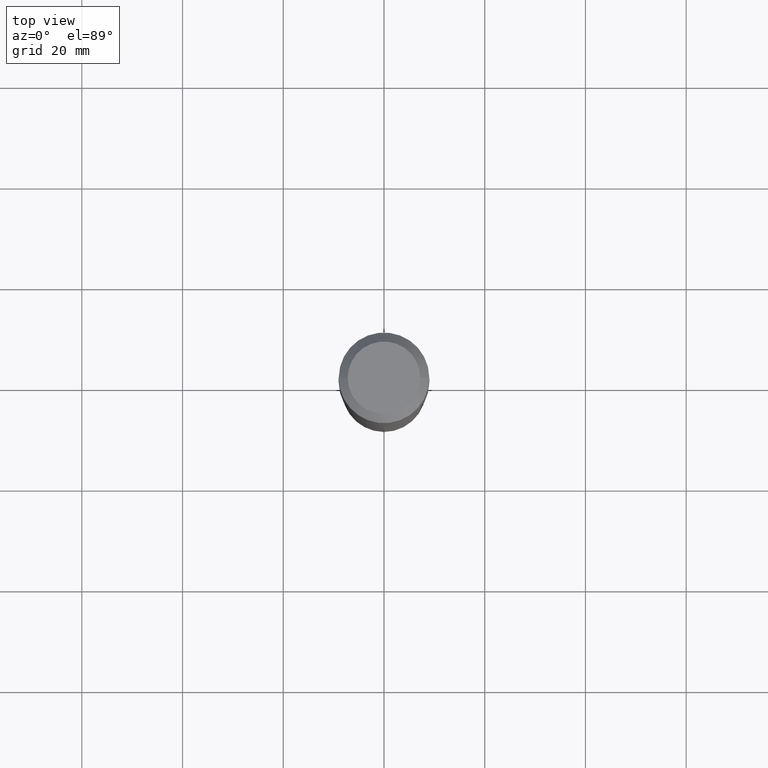
[diagram: clean part render]
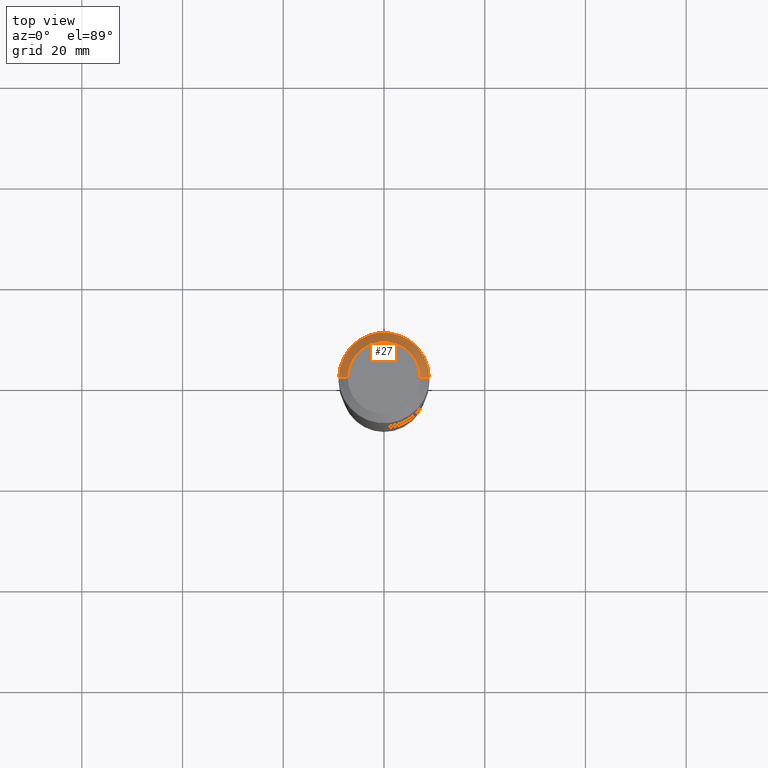
[diagram: same view with one face highlighted and labeled with its STEP entity id]
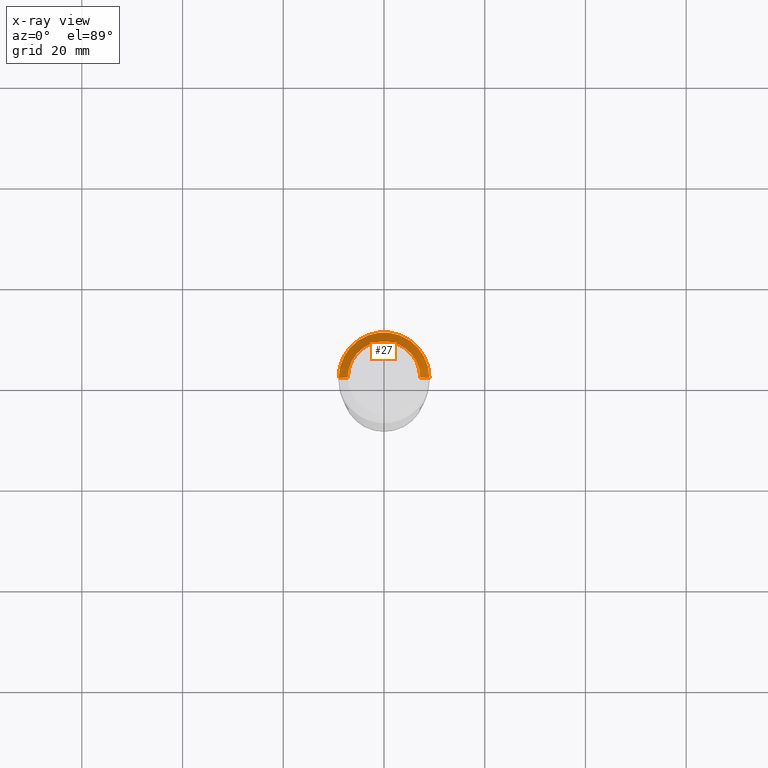
[diagram: x-ray of the same camera — body ghosted, the highlighted face saturated]
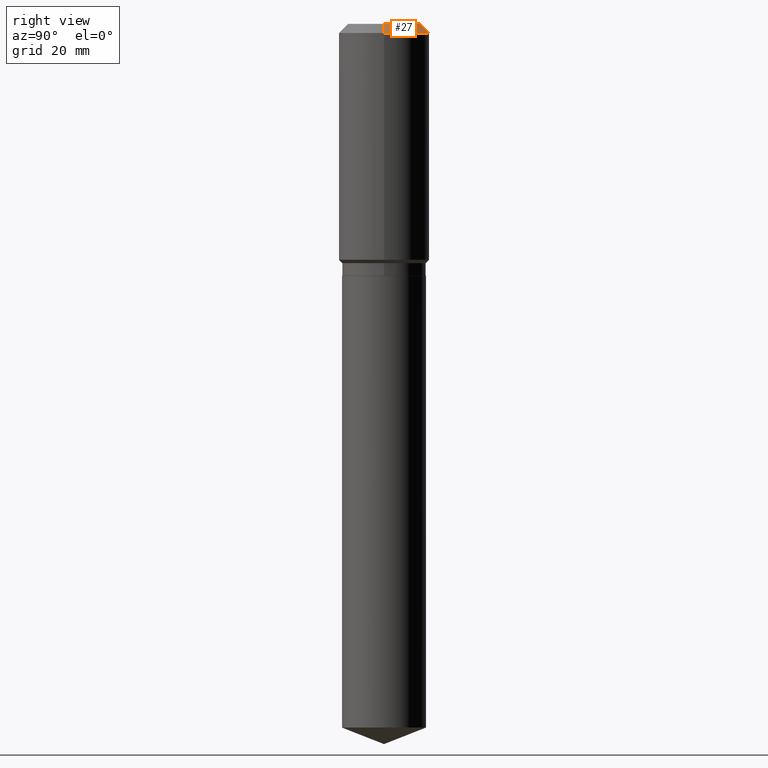
[diagram: same view with one face highlighted and labeled with its STEP entity id]
A machine part, top view. The second image highlights one B-rep face of the part: STEP entity #27.
The next image is the same camera in x-ray: the body ghosted, the highlighted face saturated — about 0% of this face is hidden behind the body in this view.
A second angle (right view) of the same face is appended — the face is thin or edge-on in the first view.
In plain terms, the highlighted conical surface has half-angle 45 deg.
Its self-contained STEP definition (entity closure, byte-faithful):
#6 = EDGE_CURVE ( 'NONE', #116, #199, #254, .T. ) ;
#13 = DIRECTION ( 'NONE',  ( -2.445468806185136597E-29, 3.491481338843145583E-15, 1.000000000000000000 ) ) ;
#14 = EDGE_CURVE ( 'NONE', #423, #419, #167, .T. ) ;
#27 = ADVANCED_FACE ( 'NONE', ( #275 ), #284, .T. ) ;
#29 = CARTESIAN_POINT ( 'NONE',  ( -0.3543499999999999983, 2.226971542354313655E-15, -0.07087000000000043265 ) ) ;
#34 = AXIS2_PLACEMENT_3D ( 'NONE', #400, #239, #395 ) ;
#36 = ORIENTED_EDGE ( 'NONE', *, *, #184, .F. ) ;
#57 = DIRECTION ( 'NONE',  ( -1.000000000000000000, 6.982962677686266711E-15, 0.000000000000000000 ) ) ;
#72 = CARTESIAN_POINT ( 'NONE',  ( -0.3543499999999999983, -8.249709644559009364E-16, -0.07087000000000043265 ) ) ;
#74 = CARTESIAN_POINT ( 'NONE',  ( 0.3543499999999999983, -2.721854107321943733E-15, -0.07087000000000043265 ) ) ;
#81 = VECTOR ( 'NONE', #412, 39.37007874015748143 ) ;
#116 = VERTEX_POINT ( 'NONE', #74 ) ;
#146 = AXIS2_PLACEMENT_3D ( 'NONE', #430, #269, #57 ) ;
#167 = CIRCLE ( 'NONE', #34, 0.2834800000000000098 ) ;
#184 = EDGE_CURVE ( 'NONE', #419, #199, #477, .T. ) ;
#199 = VERTEX_POINT ( 'NONE', #72 ) ;
#231 = LINE ( 'NONE', #315, #451 ) ;
#239 = DIRECTION ( 'NONE',  ( -2.445468806185136597E-29, 3.491481338843145583E-15, 1.000000000000000000 ) ) ;
#254 = CIRCLE ( 'NONE', #417, 0.3543499999999999983 ) ;
#269 = DIRECTION ( 'NONE',  ( 2.445468806185136597E-29, -3.491481338843145583E-15, -1.000000000000000000 ) ) ;
#275 = FACE_OUTER_BOUND ( 'NONE', #453, .T. ) ;
#284 = CONICAL_SURFACE ( 'NONE', #146, 0.3543499999999999983, 0.7853981633974452814 ) ;
#309 = ORIENTED_EDGE ( 'NONE', *, *, #6, .T. ) ;
#315 = CARTESIAN_POINT ( 'NONE',  ( 0.3543499999999999983, -2.678458747994157430E-15, -0.07087000000000043265 ) ) ;
#367 = EDGE_CURVE ( 'NONE', #423, #116, #231, .T. ) ;
#374 = ORIENTED_EDGE ( 'NONE', *, *, #14, .F. ) ;
#390 = CARTESIAN_POINT ( 'NONE',  ( 1.733103742943417062E-30, -2.474412824838152853E-16, -0.07087000000000043265 ) ) ;
#395 = DIRECTION ( 'NONE',  ( 1.000000000000000000, -6.982962677686266711E-15, 4.876249319814053138E-29 ) ) ;
#400 = CARTESIAN_POINT ( 'NONE',  ( -9.439721640706191963E-47, 1.347742071746725396E-32, 3.860086710912455110E-18 ) ) ;
#412 = DIRECTION ( 'NONE',  ( -0.7071067811865453523, 2.468850131082234184E-15, -0.7071067811865496822 ) ) ;
#417 = AXIS2_PLACEMENT_3D ( 'NONE', #390, #13, #462 ) ;
#419 = VERTEX_POINT ( 'NONE', #437 ) ;
#423 = VERTEX_POINT ( 'NONE', #433 ) ;
#430 = CARTESIAN_POINT ( 'NONE',  ( 1.733103742943417062E-30, -2.474412824838152853E-16, -0.07087000000000043265 ) ) ;
#433 = CARTESIAN_POINT ( 'NONE',  ( 0.2834800000000000098, -2.311636360201216027E-15, 3.860086710927458874E-18 ) ) ;
#437 = CARTESIAN_POINT ( 'NONE',  ( -0.2834800000000000098, 2.103250901112408108E-15, 3.860086710898179346E-18 ) ) ;
#451 = VECTOR ( 'NONE', #467, 39.37007874015748143 ) ;
#453 = EDGE_LOOP ( 'NONE', ( #374, #458, #309, #36 ) ) ;
#458 = ORIENTED_EDGE ( 'NONE', *, *, #367, .T. ) ;
#462 = DIRECTION ( 'NONE',  ( 1.000000000000000000, -6.982962677686266711E-15, 0.000000000000000000 ) ) ;
#467 = DIRECTION ( 'NONE',  ( 0.7071067811865453523, -7.319954787623248157E-15, -0.7071067811865496822 ) ) ;
#477 = LINE ( 'NONE', #29, #81 ) ;